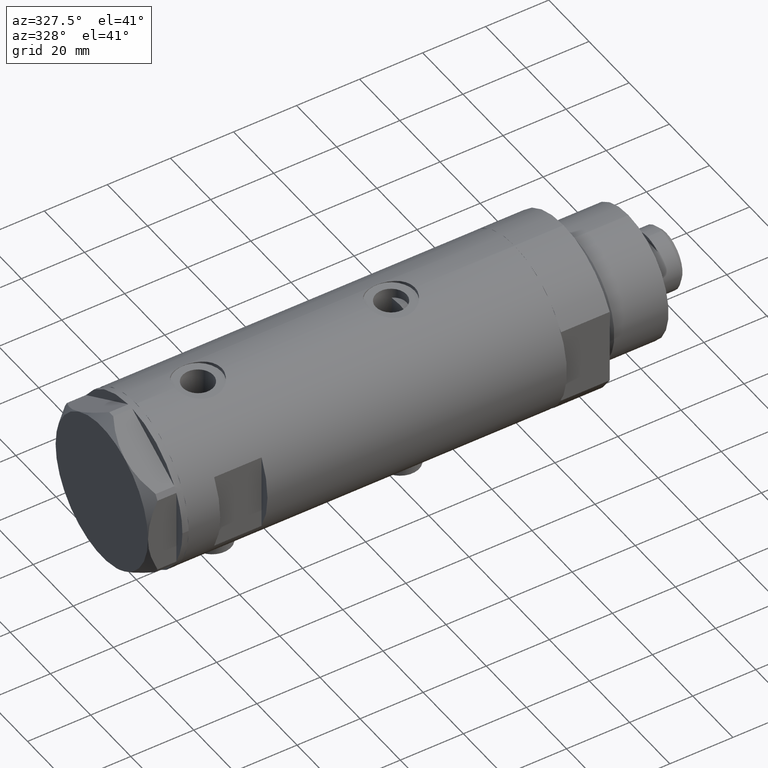
[diagram: clean part render]
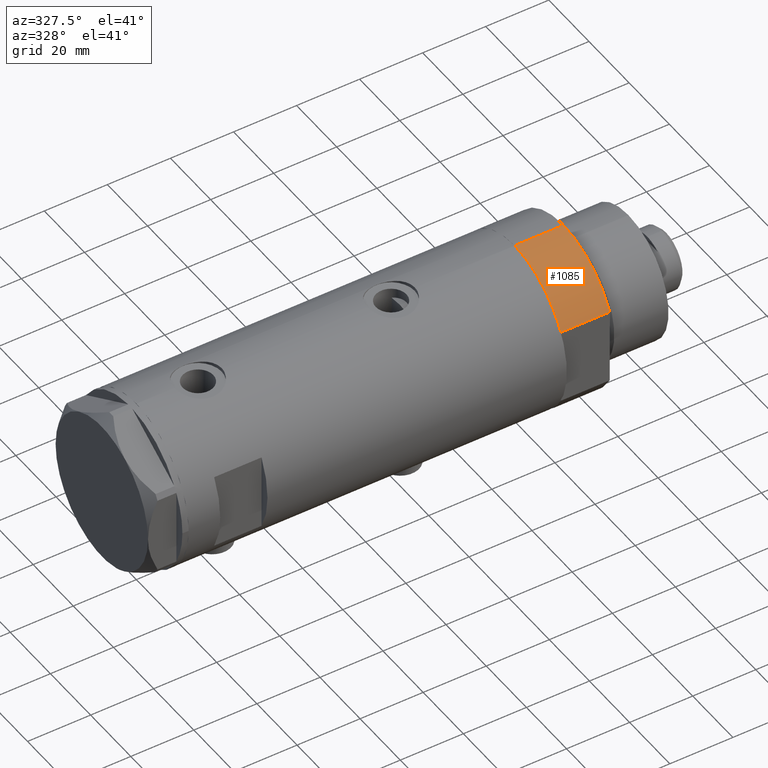
[diagram: same view with one face highlighted and labeled with its STEP entity id]
A machine part, auxiliary view. The second image highlights one B-rep face of the part: STEP entity #1085.
In plain terms, the highlighted cylindrical surface (partial cylindrical patch) has radius 26 mm, axis along (-1, -0, 0).
Its self-contained STEP definition (entity closure, byte-faithful):
#74 = DIRECTION ( 'NONE',  ( -0.000000000000000000, -0.000000000000000000, -1.000000000000000000 ) ) ;
#144 = VECTOR ( 'NONE', #2673, 1000.000000000000000 ) ;
#339 = EDGE_CURVE ( 'NONE', #667, #5036, #1710, .T. ) ;
#388 = VECTOR ( 'NONE', #471, 1000.000000000000000 ) ;
#471 = DIRECTION ( 'NONE',  ( -0.000000000000000000, -0.000000000000000000, 1.000000000000000000 ) ) ;
#528 = EDGE_CURVE ( 'NONE', #1685, #5036, #4576, .T. ) ;
#667 = VERTEX_POINT ( 'NONE', #1675 ) ;
#713 = CARTESIAN_POINT ( 'NONE',  ( -12.12435565298215323, -22.99999999999999645, 15.50000000000000000 ) ) ;
#795 = ORIENTED_EDGE ( 'NONE', *, *, #3417, .T. ) ;
#859 = FACE_OUTER_BOUND ( 'NONE', #2763, .T. ) ;
#1068 = AXIS2_PLACEMENT_3D ( 'NONE', #4532, #2134, #3752 ) ;
#1085 = ADVANCED_FACE ( 'NONE', ( #859 ), #2075, .T. ) ;
#1254 = VERTEX_POINT ( 'NONE', #2852 ) ;
#1298 = DIRECTION ( 'NONE',  ( 0.000000000000000000, 0.000000000000000000, 1.000000000000000000 ) ) ;
#1665 = DIRECTION ( 'NONE',  ( -1.000000000000000000, 0.000000000000000000, 0.000000000000000000 ) ) ;
#1675 = CARTESIAN_POINT ( 'NONE',  ( -12.12435565298215501, -22.99999999999999645, 0.000000000000000000 ) ) ;
#1685 = VERTEX_POINT ( 'NONE', #5008 ) ;
#1710 = LINE ( 'NONE', #4947, #388 ) ;
#1759 = AXIS2_PLACEMENT_3D ( 'NONE', #2917, #1298, #4608 ) ;
#1762 = LINE ( 'NONE', #1792, #144 ) ;
#1792 = CARTESIAN_POINT ( 'NONE',  ( -26.00000000000000355, 0.000000000000000000, 15.50000000000000000 ) ) ;
#2075 = CYLINDRICAL_SURFACE ( 'NONE', #3227, 26.00000000000000355 ) ;
#2134 = DIRECTION ( 'NONE',  ( 0.000000000000000000, 0.000000000000000000, 1.000000000000000000 ) ) ;
#2673 = DIRECTION ( 'NONE',  ( -0.000000000000000000, -0.000000000000000000, -1.000000000000000000 ) ) ;
#2763 = EDGE_LOOP ( 'NONE', ( #4134, #795, #3635, #3183 ) ) ;
#2852 = CARTESIAN_POINT ( 'NONE',  ( -26.00000000000000355, 0.000000000000000000, 0.000000000000000000 ) ) ;
#2917 = CARTESIAN_POINT ( 'NONE',  ( 0.000000000000000000, 0.000000000000000000, 0.000000000000000000 ) ) ;
#3183 = ORIENTED_EDGE ( 'NONE', *, *, #339, .T. ) ;
#3227 = AXIS2_PLACEMENT_3D ( 'NONE', #4056, #74, #1665 ) ;
#3417 = EDGE_CURVE ( 'NONE', #1685, #1254, #1762, .T. ) ;
#3635 = ORIENTED_EDGE ( 'NONE', *, *, #4857, .T. ) ;
#3752 = DIRECTION ( 'NONE',  ( 1.000000000000000000, 0.000000000000000000, 0.000000000000000000 ) ) ;
#4056 = CARTESIAN_POINT ( 'NONE',  ( 0.000000000000000000, 0.000000000000000000, 15.50000000000000000 ) ) ;
#4134 = ORIENTED_EDGE ( 'NONE', *, *, #528, .F. ) ;
#4220 = CIRCLE ( 'NONE', #1759, 26.00000000000000355 ) ;
#4532 = CARTESIAN_POINT ( 'NONE',  ( 0.000000000000000000, 0.000000000000000000, 15.50000000000000000 ) ) ;
#4576 = CIRCLE ( 'NONE', #1068, 26.00000000000000355 ) ;
#4608 = DIRECTION ( 'NONE',  ( 1.000000000000000000, 0.000000000000000000, 0.000000000000000000 ) ) ;
#4857 = EDGE_CURVE ( 'NONE', #1254, #667, #4220, .T. ) ;
#4947 = CARTESIAN_POINT ( 'NONE',  ( -12.12435565298215145, -22.99999999999999645, 0.000000000000000000 ) ) ;
#5008 = CARTESIAN_POINT ( 'NONE',  ( -26.00000000000000355, 0.000000000000000000, 15.50000000000000000 ) ) ;
#5036 = VERTEX_POINT ( 'NONE', #713 ) ;